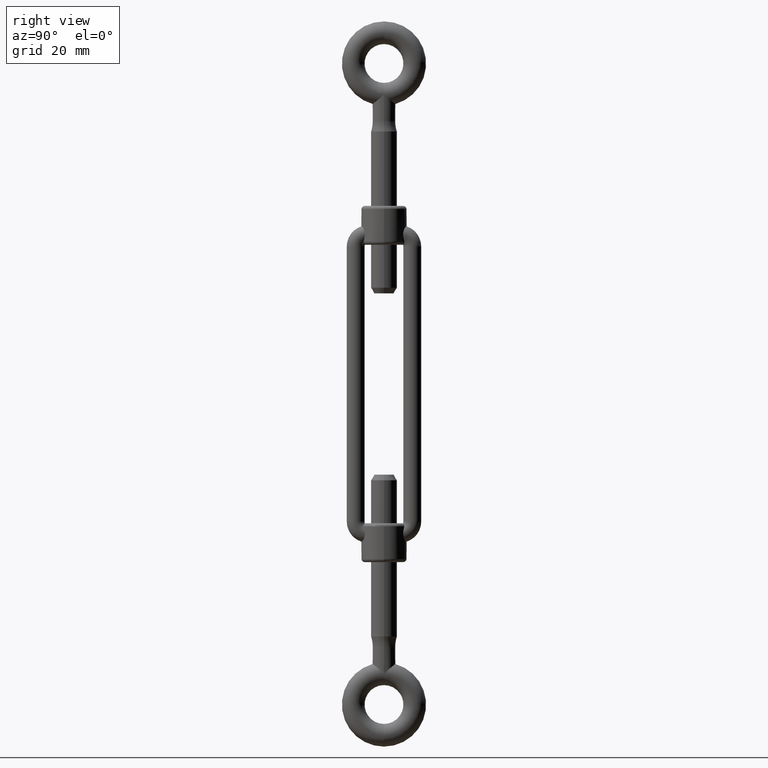
[diagram: clean part render]
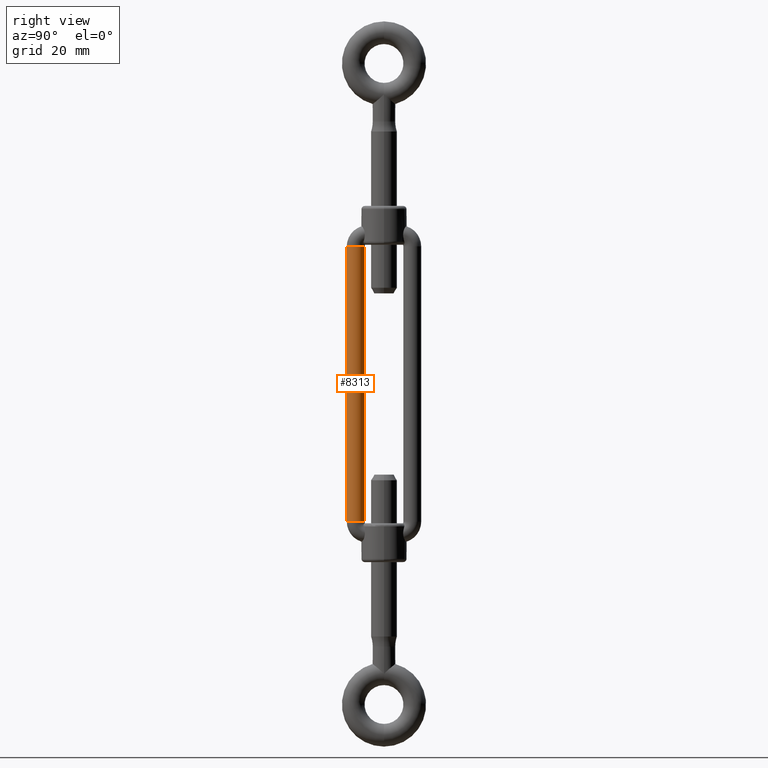
[diagram: same view with one face highlighted and labeled with its STEP entity id]
A machine part, right view. The second image highlights one B-rep face of the part: STEP entity #8313.
In plain terms, the highlighted cylindrical surface (edge-blend (fillet) strip) has radius 2.75 mm, axis along (0, 0, -1).
Its self-contained STEP definition (entity closure, byte-faithful):
#851 = CARTESIAN_POINT ( 'NONE',  ( 0.9999999999999974500, -8.750000000000007100, 42.49999999999998600 ) ) ;
#1197 = DIRECTION ( 'NONE',  ( 0.0000000000000000000, 1.000000000000000000, 0.0000000000000000000 ) ) ;
#1522 = AXIS2_PLACEMENT_3D ( 'NONE', #12464, #2922, #4632 ) ;
#2187 = CARTESIAN_POINT ( 'NONE',  ( 0.9999999999999974500, -11.50000000000000400, 42.49999999999998600 ) ) ;
#2242 = CIRCLE ( 'NONE', #13751, 2.749999999999995600 ) ;
#2837 = ORIENTED_EDGE ( 'NONE', *, *, #19784, .F. ) ;
#2922 = DIRECTION ( 'NONE',  ( -0.0000000000000000000, 6.123233995736766000E-017, 1.000000000000000000 ) ) ;
#3127 = CARTESIAN_POINT ( 'NONE',  ( 0.9999999999999974500, -8.750000000000003600, -42.50000000000000000 ) ) ;
#3195 = ORIENTED_EDGE ( 'NONE', *, *, #3215, .F. ) ;
#3215 = EDGE_CURVE ( 'NONE', #4676, #20224, #9093, .T. ) ;
#4632 = DIRECTION ( 'NONE',  ( 0.0000000000000000000, -1.000000000000000000, 0.0000000000000000000 ) ) ;
#4676 = VERTEX_POINT ( 'NONE', #8123 ) ;
#5193 = CARTESIAN_POINT ( 'NONE',  ( 0.9999999999999974500, -11.50000000000000400, 42.49999999999998600 ) ) ;
#6900 = LINE ( 'NONE', #5193, #9154 ) ;
#7091 = CARTESIAN_POINT ( 'NONE',  ( 0.9999999999999974500, -11.50000000000000000, -42.50000000000000000 ) ) ;
#7656 = VERTEX_POINT ( 'NONE', #7091 ) ;
#8063 = FACE_OUTER_BOUND ( 'NONE', #15914, .T. ) ;
#8123 = CARTESIAN_POINT ( 'NONE',  ( 0.9999999999999974500, -6.000000000000012400, 42.49999999999998600 ) ) ;
#8313 = ADVANCED_FACE ( 'NONE', ( #8063 ), #13521, .T. ) ;
#9093 = LINE ( 'NONE', #16693, #19012 ) ;
#9154 = VECTOR ( 'NONE', #9840, 1000.000000000000000 ) ;
#9840 = DIRECTION ( 'NONE',  ( 0.0000000000000000000, 3.061276722312012700E-017, -1.000000000000000000 ) ) ;
#9864 = EDGE_CURVE ( 'NONE', #14561, #7656, #6900, .T. ) ;
#10802 = ORIENTED_EDGE ( 'NONE', *, *, #9864, .T. ) ;
#11214 = DIRECTION ( 'NONE',  ( -0.0000000000000000000, 6.123233995736766000E-017, 1.000000000000000000 ) ) ;
#12464 = CARTESIAN_POINT ( 'NONE',  ( 0.9999999999999974500, -8.750000000000007100, 42.49999999999998600 ) ) ;
#13521 = CYLINDRICAL_SURFACE ( 'NONE', #18637, 2.749999999999995600 ) ;
#13751 = AXIS2_PLACEMENT_3D ( 'NONE', #3127, #11214, #15977 ) ;
#14561 = VERTEX_POINT ( 'NONE', #2187 ) ;
#14883 = DIRECTION ( 'NONE',  ( 0.0000000000000000000, 3.061276722312012700E-017, -1.000000000000000000 ) ) ;
#15149 = CIRCLE ( 'NONE', #1522, 2.749999999999995600 ) ;
#15567 = EDGE_CURVE ( 'NONE', #7656, #20224, #2242, .T. ) ;
#15914 = EDGE_LOOP ( 'NONE', ( #2837, #10802, #20145, #3195 ) ) ;
#15977 = DIRECTION ( 'NONE',  ( 0.0000000000000000000, -1.000000000000000000, 0.0000000000000000000 ) ) ;
#16693 = CARTESIAN_POINT ( 'NONE',  ( 0.9999999999999974500, -6.000000000000012400, 42.49999999999998600 ) ) ;
#16775 = DIRECTION ( 'NONE',  ( 0.0000000000000000000, 3.061276722312012700E-017, -1.000000000000000000 ) ) ;
#16869 = CARTESIAN_POINT ( 'NONE',  ( 0.9999999999999974500, -6.000000000000009800, -42.50000000000000000 ) ) ;
#18637 = AXIS2_PLACEMENT_3D ( 'NONE', #851, #16775, #1197 ) ;
#19012 = VECTOR ( 'NONE', #14883, 1000.000000000000000 ) ;
#19784 = EDGE_CURVE ( 'NONE', #14561, #4676, #15149, .T. ) ;
#20145 = ORIENTED_EDGE ( 'NONE', *, *, #15567, .T. ) ;
#20224 = VERTEX_POINT ( 'NONE', #16869 ) ;